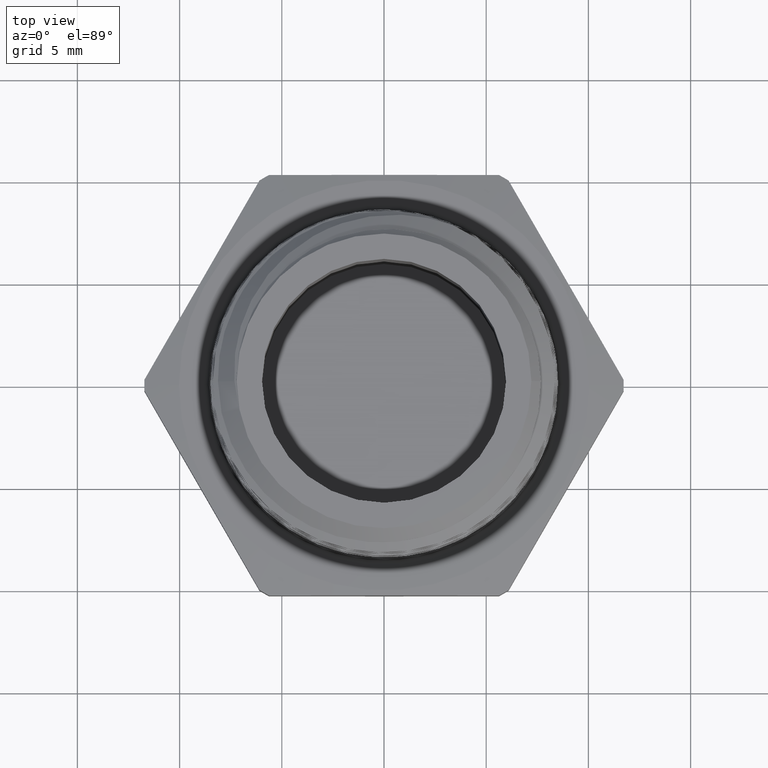
[diagram: clean part render]
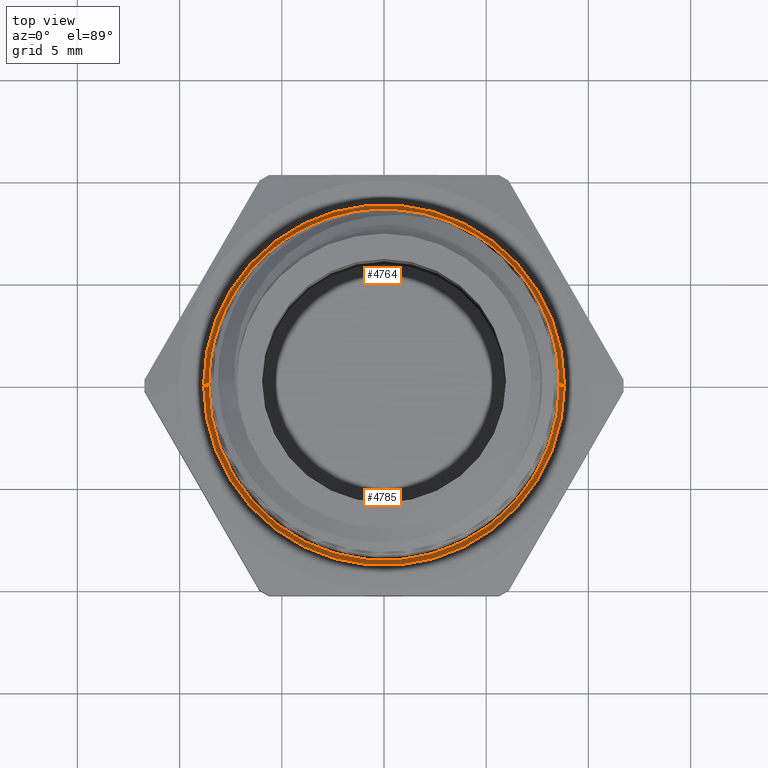
[diagram: same view with one multi-face feature highlighted, each face labeled with its STEP entity id]
A machine part, top view. The highlighted faces form ONE feature: a constant-radius fillet chain: 2 tangent blend faces with common blend radius 0.254 mm. The faces share edges in the B-rep.
Their STEP definitions:
[1] entity #4785 (Torus):
#586 = CARTESIAN_POINT ( 'NONE',  ( -0.3475000000000000300, 4.255647627037053400E-017, 0.1199999999999999800 ) ) ;
#594 = CARTESIAN_POINT ( 'NONE',  ( 0.3475000000000000300, 0.0000000000000000000, 0.1199999999999999800 ) ) ;
#1001 = DIRECTION ( 'NONE',  ( -0.0000000000000000000, 0.0000000000000000000, 1.000000000000000000 ) ) ;
#1002 = CARTESIAN_POINT ( 'NONE',  ( 0.0000000000000000000, 0.0000000000000000000, 0.1299999999999999800 ) ) ;
#1004 = DIRECTION ( 'NONE',  ( 1.000000000000000000, 0.0000000000000000000, 0.0000000000000000000 ) ) ;
#1095 = CARTESIAN_POINT ( 'NONE',  ( 0.3375000000000000200, 4.133182947122317800E-017, 0.1299999999999999800 ) ) ;
#1100 = CARTESIAN_POINT ( 'NONE',  ( -0.3375000000000000200, 0.0000000000000000000, 0.1299999999999999800 ) ) ;
#1179 = ORIENTED_EDGE ( 'NONE', *, *, #2814, .F. ) ;
#1180 = ORIENTED_EDGE ( 'NONE', *, *, #2825, .T. ) ;
#1181 = ORIENTED_EDGE ( 'NONE', *, *, #2828, .F. ) ;
#1182 = ORIENTED_EDGE ( 'NONE', *, *, #2830, .F. ) ;
#1957 = EDGE_LOOP ( 'NONE', ( #1179, #1180, #1181, #1182 ) ) ;
#1990 = CIRCLE ( 'NONE', #2907, 0.01000000000000003000 ) ;
#1991 = CIRCLE ( 'NONE', #2909, 0.3475000000000000300 ) ;
#1995 = CIRCLE ( 'NONE', #2911, 0.009999999999999995000 ) ;
#2814 = EDGE_CURVE ( 'NONE', #4861, #4864, #4734, .T. ) ;
#2825 = EDGE_CURVE ( 'NONE', #4861, #4753, #1990, .T. ) ;
#2828 = EDGE_CURVE ( 'NONE', #4749, #4753, #1991, .T. ) ;
#2830 = EDGE_CURVE ( 'NONE', #4864, #4749, #1995, .T. ) ;
#2900 = AXIS2_PLACEMENT_3D ( 'NONE', #3933, #3935, #3937 ) ;
#2907 = AXIS2_PLACEMENT_3D ( 'NONE', #4005, #4007, #4009 ) ;
#2909 = AXIS2_PLACEMENT_3D ( 'NONE', #4034, #4035, #4036 ) ;
#2911 = AXIS2_PLACEMENT_3D ( 'NONE', #4046, #4047, #4049 ) ;
#2983 = FACE_OUTER_BOUND ( 'NONE', #1957, .T. ) ;
#2986 = TOROIDAL_SURFACE ( 'NONE', #4327, 0.3475000000000000300, 0.01000000000000000000 ) ;
#3933 = CARTESIAN_POINT ( 'NONE',  ( 0.0000000000000000000, 0.0000000000000000000, 0.1299999999999999800 ) ) ;
#3935 = DIRECTION ( 'NONE',  ( -0.0000000000000000000, 0.0000000000000000000, 1.000000000000000000 ) ) ;
#3937 = DIRECTION ( 'NONE',  ( 1.000000000000000000, 0.0000000000000000000, 0.0000000000000000000 ) ) ;
#4005 = CARTESIAN_POINT ( 'NONE',  ( -0.3475000000000000300, 4.255647627037053400E-017, 0.1299999999999999800 ) ) ;
#4007 = DIRECTION ( 'NONE',  ( 1.224646799147353200E-016, 1.000000000000000000, 0.0000000000000000000 ) ) ;
#4009 = DIRECTION ( 'NONE',  ( -1.000000000000000000, 1.224646799147346800E-016, 0.0000000000000000000 ) ) ;
#4034 = CARTESIAN_POINT ( 'NONE',  ( 0.0000000000000000000, 0.0000000000000000000, 0.1200000000000000000 ) ) ;
#4035 = DIRECTION ( 'NONE',  ( 0.0000000000000000000, -0.0000000000000000000, -1.000000000000000000 ) ) ;
#4036 = DIRECTION ( 'NONE',  ( 1.000000000000000000, 0.0000000000000000000, 0.0000000000000000000 ) ) ;
#4046 = CARTESIAN_POINT ( 'NONE',  ( 0.3475000000000000300, 0.0000000000000000000, 0.1299999999999999800 ) ) ;
#4047 = DIRECTION ( 'NONE',  ( 0.0000000000000000000, -1.000000000000000000, 0.0000000000000000000 ) ) ;
#4049 = DIRECTION ( 'NONE',  ( 0.0000000000000000000, 0.0000000000000000000, -1.000000000000000000 ) ) ;
#4327 = AXIS2_PLACEMENT_3D ( 'NONE', #1002, #1001, #1004 ) ;
#4734 = CIRCLE ( 'NONE', #2900, 0.3375000000000000200 ) ;
#4749 = VERTEX_POINT ( 'NONE', #594 ) ;
#4753 = VERTEX_POINT ( 'NONE', #586 ) ;
#4785 = ADVANCED_FACE ( 'NONE', ( #2983 ), #2986, .F. ) ;
#4861 = VERTEX_POINT ( 'NONE', #1100 ) ;
#4864 = VERTEX_POINT ( 'NONE', #1095 ) ;
[2] entity #4764 (Torus):
#46 = ORIENTED_EDGE ( 'NONE', *, *, #2825, .F. ) ;
#47 = ORIENTED_EDGE ( 'NONE', *, *, #2873, .F. ) ;
#48 = ORIENTED_EDGE ( 'NONE', *, *, #2830, .T. ) ;
#49 = ORIENTED_EDGE ( 'NONE', *, *, #2769, .F. ) ;
#413 = CARTESIAN_POINT ( 'NONE',  ( 0.0000000000000000000, 0.0000000000000000000, 0.1299999999999999800 ) ) ;
#414 = DIRECTION ( 'NONE',  ( -0.0000000000000000000, 0.0000000000000000000, 1.000000000000000000 ) ) ;
#415 = DIRECTION ( 'NONE',  ( 1.000000000000000000, 0.0000000000000000000, 0.0000000000000000000 ) ) ;
#586 = CARTESIAN_POINT ( 'NONE',  ( -0.3475000000000000300, 4.255647627037053400E-017, 0.1199999999999999800 ) ) ;
#594 = CARTESIAN_POINT ( 'NONE',  ( 0.3475000000000000300, 0.0000000000000000000, 0.1199999999999999800 ) ) ;
#649 = CARTESIAN_POINT ( 'NONE',  ( 0.0000000000000000000, 0.0000000000000000000, 0.1299999999999999800 ) ) ;
#654 = DIRECTION ( 'NONE',  ( -0.0000000000000000000, 0.0000000000000000000, 1.000000000000000000 ) ) ;
#661 = DIRECTION ( 'NONE',  ( 1.000000000000000000, 0.0000000000000000000, 0.0000000000000000000 ) ) ;
#802 = FACE_OUTER_BOUND ( 'NONE', #1919, .T. ) ;
#806 = TOROIDAL_SURFACE ( 'NONE', #4296, 0.3475000000000000300, 0.01000000000000000000 ) ;
#1095 = CARTESIAN_POINT ( 'NONE',  ( 0.3375000000000000200, 4.133182947122317800E-017, 0.1299999999999999800 ) ) ;
#1100 = CARTESIAN_POINT ( 'NONE',  ( -0.3375000000000000200, 0.0000000000000000000, 0.1299999999999999800 ) ) ;
#1919 = EDGE_LOOP ( 'NONE', ( #46, #47, #48, #49 ) ) ;
#1990 = CIRCLE ( 'NONE', #2907, 0.01000000000000003000 ) ;
#1995 = CIRCLE ( 'NONE', #2911, 0.009999999999999995000 ) ;
#2037 = CIRCLE ( 'NONE', #4282, 0.3375000000000000200 ) ;
#2769 = EDGE_CURVE ( 'NONE', #4753, #4749, #4679, .T. ) ;
#2825 = EDGE_CURVE ( 'NONE', #4861, #4753, #1990, .T. ) ;
#2830 = EDGE_CURVE ( 'NONE', #4864, #4749, #1995, .T. ) ;
#2873 = EDGE_CURVE ( 'NONE', #4864, #4861, #2037, .T. ) ;
#2884 = AXIS2_PLACEMENT_3D ( 'NONE', #4004, #4006, #4008 ) ;
#2907 = AXIS2_PLACEMENT_3D ( 'NONE', #4005, #4007, #4009 ) ;
#2911 = AXIS2_PLACEMENT_3D ( 'NONE', #4046, #4047, #4049 ) ;
#4004 = CARTESIAN_POINT ( 'NONE',  ( 0.0000000000000000000, 0.0000000000000000000, 0.1200000000000000000 ) ) ;
#4005 = CARTESIAN_POINT ( 'NONE',  ( -0.3475000000000000300, 4.255647627037053400E-017, 0.1299999999999999800 ) ) ;
#4006 = DIRECTION ( 'NONE',  ( 0.0000000000000000000, -0.0000000000000000000, -1.000000000000000000 ) ) ;
#4007 = DIRECTION ( 'NONE',  ( 1.224646799147353200E-016, 1.000000000000000000, 0.0000000000000000000 ) ) ;
#4008 = DIRECTION ( 'NONE',  ( 1.000000000000000000, 0.0000000000000000000, 0.0000000000000000000 ) ) ;
#4009 = DIRECTION ( 'NONE',  ( -1.000000000000000000, 1.224646799147346800E-016, 0.0000000000000000000 ) ) ;
#4046 = CARTESIAN_POINT ( 'NONE',  ( 0.3475000000000000300, 0.0000000000000000000, 0.1299999999999999800 ) ) ;
#4047 = DIRECTION ( 'NONE',  ( 0.0000000000000000000, -1.000000000000000000, 0.0000000000000000000 ) ) ;
#4049 = DIRECTION ( 'NONE',  ( 0.0000000000000000000, 0.0000000000000000000, -1.000000000000000000 ) ) ;
#4282 = AXIS2_PLACEMENT_3D ( 'NONE', #413, #414, #415 ) ;
#4296 = AXIS2_PLACEMENT_3D ( 'NONE', #649, #654, #661 ) ;
#4679 = CIRCLE ( 'NONE', #2884, 0.3475000000000000300 ) ;
#4749 = VERTEX_POINT ( 'NONE', #594 ) ;
#4753 = VERTEX_POINT ( 'NONE', #586 ) ;
#4764 = ADVANCED_FACE ( 'NONE', ( #802 ), #806, .F. ) ;
#4861 = VERTEX_POINT ( 'NONE', #1100 ) ;
#4864 = VERTEX_POINT ( 'NONE', #1095 ) ;